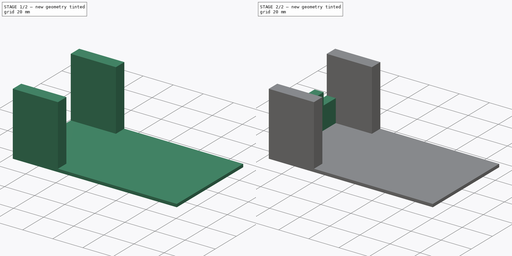
[diagram: build sequence overview — one tinted view per stage of 2, left to right]
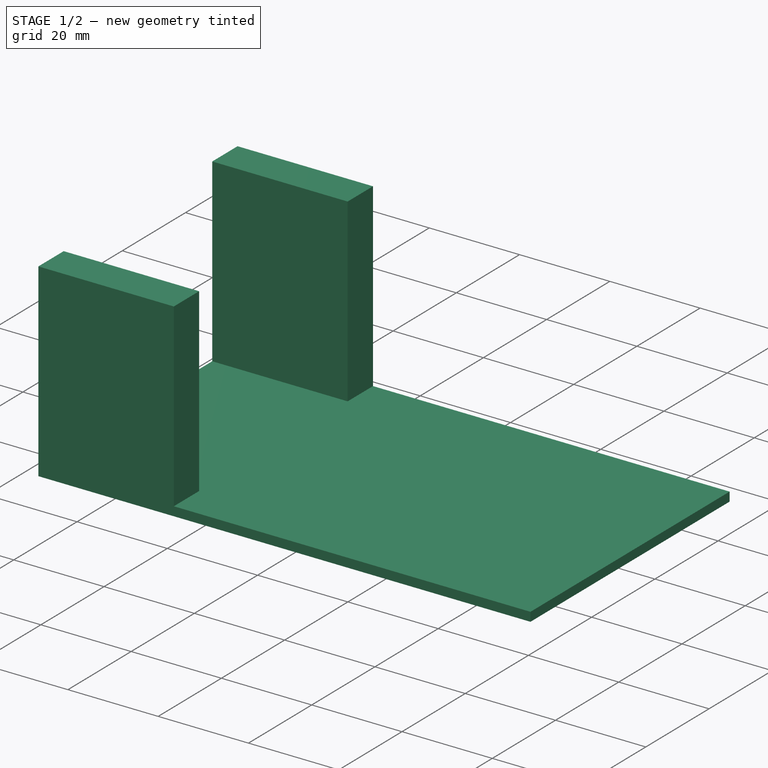
[diagram: stage 1 of 2 — iso view after this stage's code; geometry added in this stage tinted green]
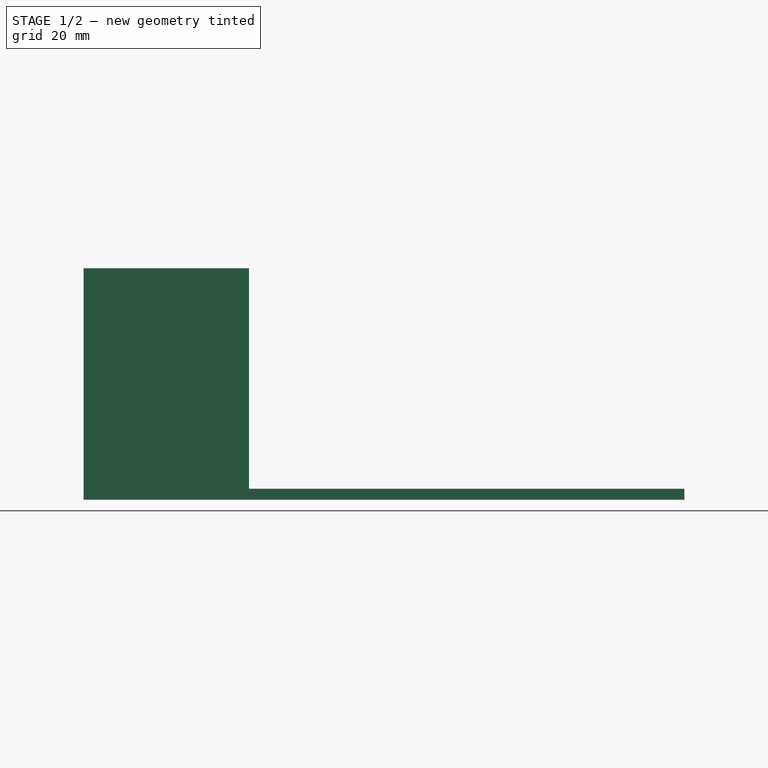
[diagram: stage 1 of 2 — front view after this stage's code; geometry added in this stage tinted green]
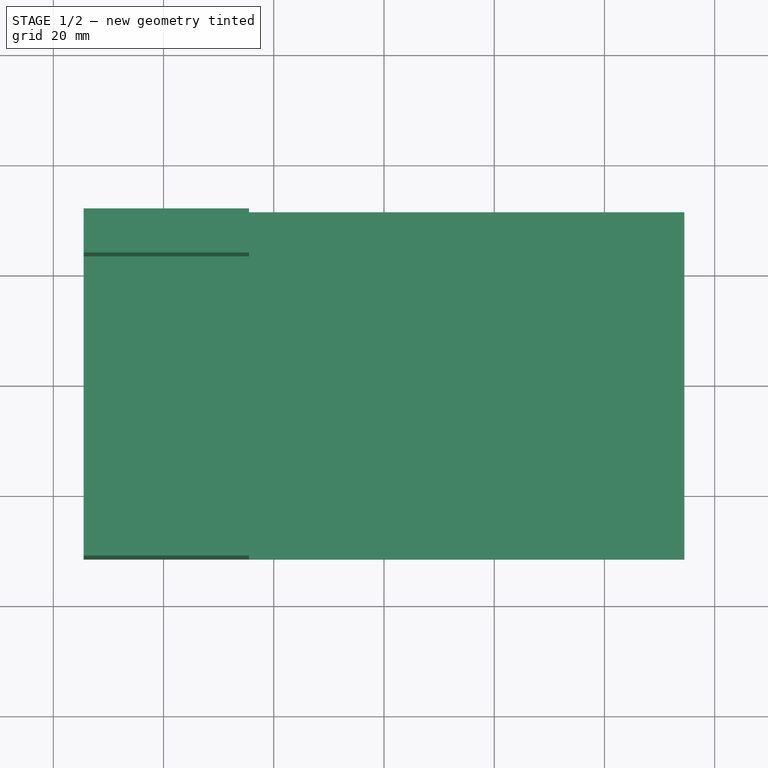
[diagram: stage 1 of 2 — top view after this stage's code; geometry added in this stage tinted green]
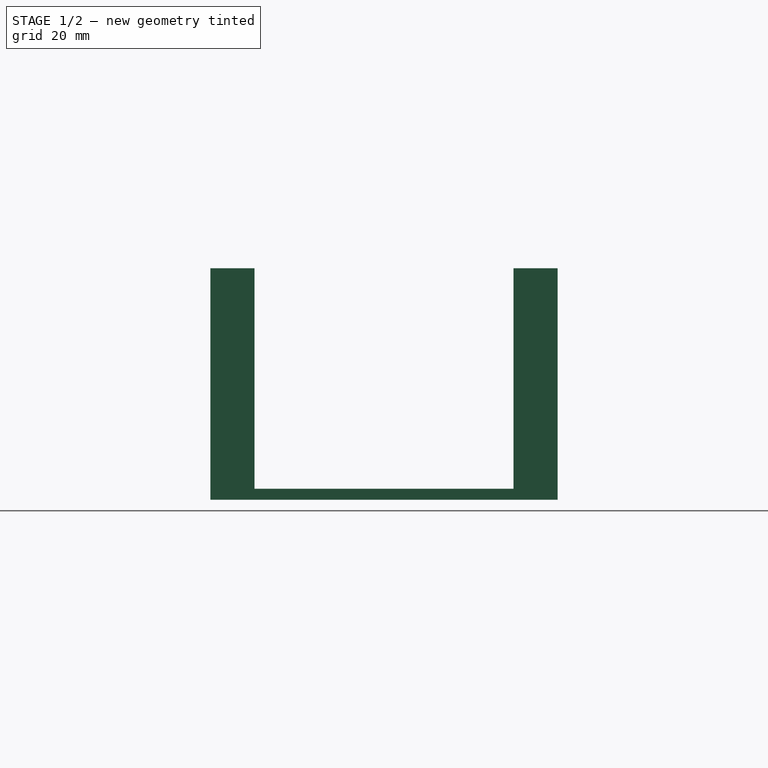
[diagram: stage 1 of 2 — right view after this stage's code; geometry added in this stage tinted green]
FCSTD DOCUMENT  (FreeCAD 0.15R4671 (Git))
Label: Solenoid Tray Test
License: All rights reserved
LicenseURL: http://en.wikipedia.org/wiki/All_rights_reserved
objects: Sketcher::SketchObject×4, PartDesign::Pad×4
note: 12 computed .brp shape members not serialized (recipe doc carries the construction recipe); baked Part::Feature solids carry a one-line shape summary decoded from their .brp

FEATURE [Sketcher::SketchObject] Sketch
  sketch-geometry (4):
    g0: LineSegment StartX=-54.5 StartY=31.5 StartZ=0 EndX=54.5 EndY=31.5 EndZ=0
    g1: LineSegment StartX=54.5 StartY=31.5 StartZ=0 EndX=54.5 EndY=-31.5 EndZ=0
    g2: LineSegment StartX=54.5 StartY=-31.5 StartZ=0 EndX=-54.5 EndY=-31.5 EndZ=0
    g3: LineSegment StartX=-54.5 StartY=-31.5 StartZ=0 EndX=-54.5 EndY=31.5 EndZ=0
  constraints (12):
    c: Coincident(g0,g1)
    c: Coincident(g1,g2)
    c: Coincident(g2,g3)
    c: Coincident(g3,g0)
    c: Horizontal(g0)
    c: Horizontal(g2)
    c: Vertical(g1)
    c: Vertical(g3)
    c: Symmetric(g0,g2,g-1)
    c: Symmetric(g0,g0,g-2)
    c: DistanceY(g3) = 63
    c: DistanceX(g0) = 109
FEATURE [PartDesign::Pad] Pad
  Length = 2
  Length2 = 100
  Sketch = -> Sketch
  Type = 0
FEATURE [Sketcher::SketchObject] Sketch001
  ExternalGeometry = -> [Pad]
  Placement = pos=(0,0,2) rot=(0,0,1;0rad)
  Support = -> Pad [Face6]
  sketch-geometry (8):
    g0: LineSegment StartX=-54.5 StartY=31.5 StartZ=0 EndX=-24.5 EndY=31.5 EndZ=0
    g1: LineSegment StartX=-24.5 StartY=31.5 StartZ=0 EndX=-24.5 EndY=23.5 EndZ=0
    g2: LineSegment StartX=-24.5 StartY=23.5 StartZ=0 EndX=-54.5 EndY=23.5 EndZ=0
    g3: LineSegment StartX=-54.5 StartY=23.5 StartZ=0 EndX=-54.5 EndY=31.5 EndZ=0
    g4: LineSegment StartX=-54.5 StartY=-23.5 StartZ=0 EndX=-24.5 EndY=-23.5 EndZ=0
    g5: LineSegment StartX=-24.5 StartY=-23.5 StartZ=0 EndX=-24.5 EndY=-31.5 EndZ=0
    g6: LineSegment StartX=-24.5 StartY=-31.5 StartZ=0 EndX=-54.5 EndY=-31.5 EndZ=0
    g7: LineSegment StartX=-54.5 StartY=-31.5 StartZ=0 EndX=-54.5 EndY=-23.5 EndZ=0
  constraints (23):
    c: Coincident(g0,g1)
    c: Coincident(g1,g2)
    c: Coincident(g2,g3)
    c: Coincident(g3,g0)
    c: Horizontal(g0)
    c: Horizontal(g2)
    c: Vertical(g1)
    c: Vertical(g3)
    c: Coincident(g4,g5)
    c: Coincident(g5,g6)
    c: Coincident(g6,g7)
    c: Coincident(g7,g4)
    c: Horizontal(g4)
    c: Horizontal(g6)
    c: Vertical(g5)
    c: Vertical(g7)
    c: Equal(g4,g2)
    c: Equal(g1,g5)
    c: Symmetric(g1,g4,g-1)
    c: DistanceY(g1) = -8
    c: DistanceY(g1,g4) = -47
    c: DistanceX(g0) = 30
    c: PointOnObject(g0,g-3)
FEATURE [PartDesign::Pad] Pad001
  Length = 40
  Length2 = 100
  Sketch = -> Sketch001
  Type = 0
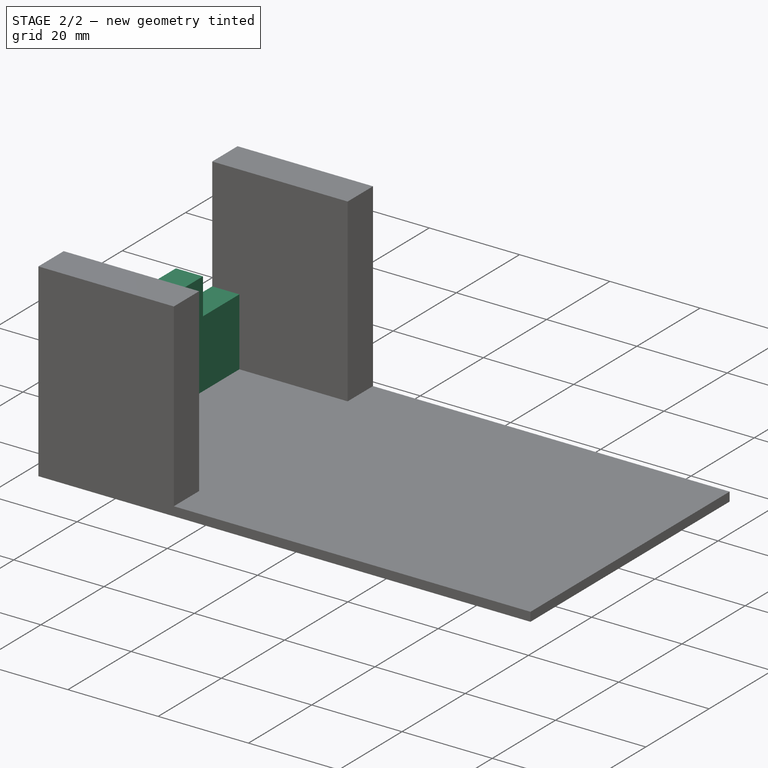
[diagram: stage 2 of 2 — iso view after this stage's code; geometry added in this stage tinted green]
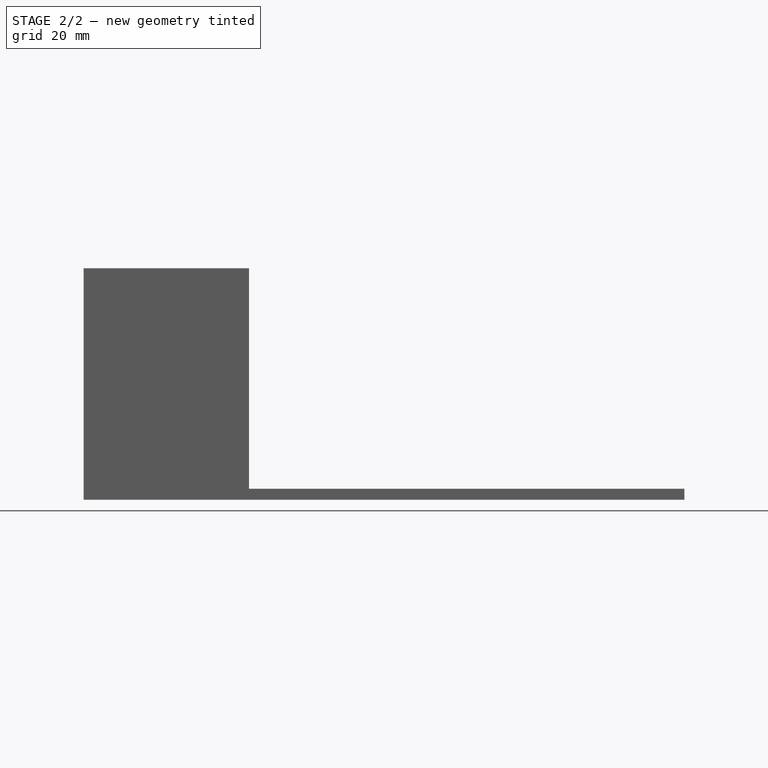
[diagram: stage 2 of 2 — front view after this stage's code; geometry added in this stage tinted green]
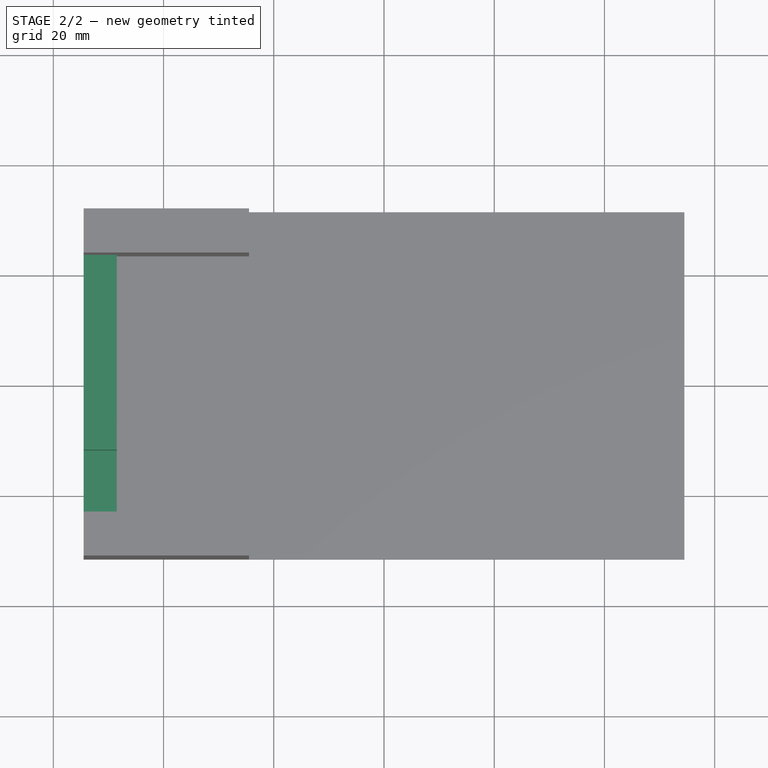
[diagram: stage 2 of 2 — top view after this stage's code; geometry added in this stage tinted green]
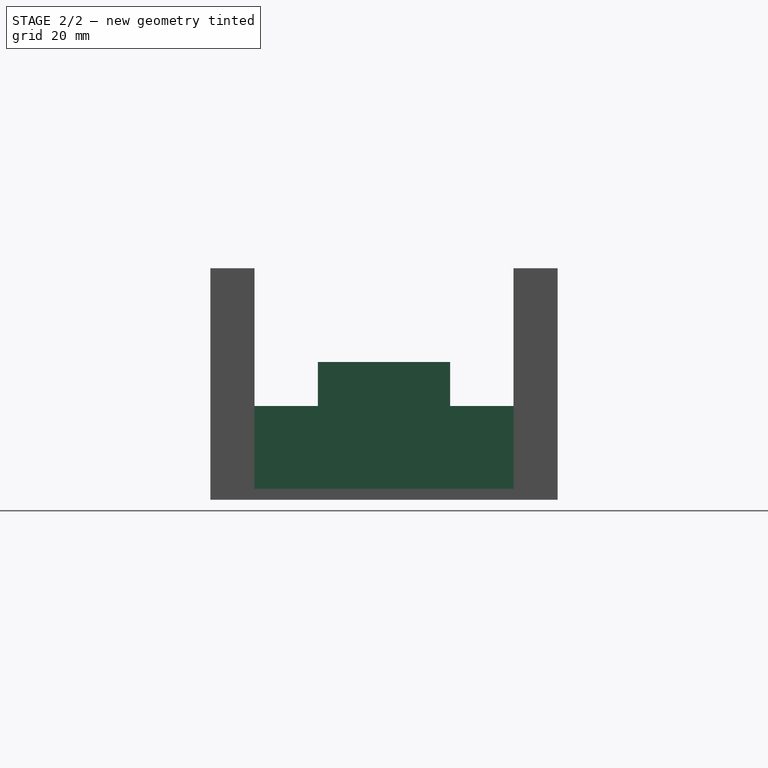
[diagram: stage 2 of 2 — right view after this stage's code; geometry added in this stage tinted green]
FEATURE [Sketcher::SketchObject] Sketch002
  ExternalGeometry = -> [Pad001]
  Placement = pos=(0,0,2) rot=(0,0,1;0rad)
  Support = -> Pad001 [Face7]
  sketch-geometry (4):
    g0: LineSegment StartX=-54.5 StartY=23.5 StartZ=0 EndX=-48.5 EndY=23.5 EndZ=0
    g1: LineSegment StartX=-48.5 StartY=23.5 StartZ=0 EndX=-48.5 EndY=-23.5 EndZ=0
    g2: LineSegment StartX=-48.5 StartY=-23.5 StartZ=0 EndX=-54.5 EndY=-23.5 EndZ=0
    g3: LineSegment StartX=-54.5 StartY=-23.5 StartZ=0 EndX=-54.5 EndY=23.5 EndZ=0
  constraints (11):
    c: Coincident(g0,g1)
    c: Coincident(g1,g2)
    c: Coincident(g2,g3)
    c: Coincident(g3,g0)
    c: Horizontal(g0)
    c: Horizontal(g2)
    c: Vertical(g1)
    c: Vertical(g3)
    c: Coincident(g0,g-4)
    c: PointOnObject(g1,g-5)
    c: DistanceX(g2) = -6
FEATURE [PartDesign::Pad] Pad002
  Length = 15
  Length2 = 100
  Sketch = -> Sketch002
  Type = 0
FEATURE [Sketcher::SketchObject] Sketch003
  ExternalGeometry = -> [Pad002]
  Placement = pos=(0,0,17) rot=(0,0,1;0rad)
  Support = -> Pad002 [Face19]
  sketch-geometry (4):
    g0: LineSegment StartX=-54.5 StartY=12 StartZ=0 EndX=-48.5 EndY=12 EndZ=0
    g1: LineSegment StartX=-48.5 StartY=12 StartZ=0 EndX=-48.5 EndY=-12 EndZ=0
    g2: LineSegment StartX=-48.5 StartY=-12 StartZ=0 EndX=-54.5 EndY=-12 EndZ=0
    g3: LineSegment StartX=-54.5 StartY=-12 StartZ=0 EndX=-54.5 EndY=12 EndZ=0
  constraints (12):
    c: Coincident(g0,g1)
    c: Coincident(g1,g2)
    c: Coincident(g2,g3)
    c: Coincident(g3,g0)
    c: Horizontal(g0)
    c: Horizontal(g2)
    c: Vertical(g1)
    c: Vertical(g3)
    c: PointOnObject(g0,g-3)
    c: PointOnObject(g1,g-5)
    c: Symmetric(g1,g0,g-1)
    c: DistanceY(g3) = 24
FEATURE [PartDesign::Pad] Pad003
  Length = 8
  Length2 = 100
  Sketch = -> Sketch003
  Type = 0
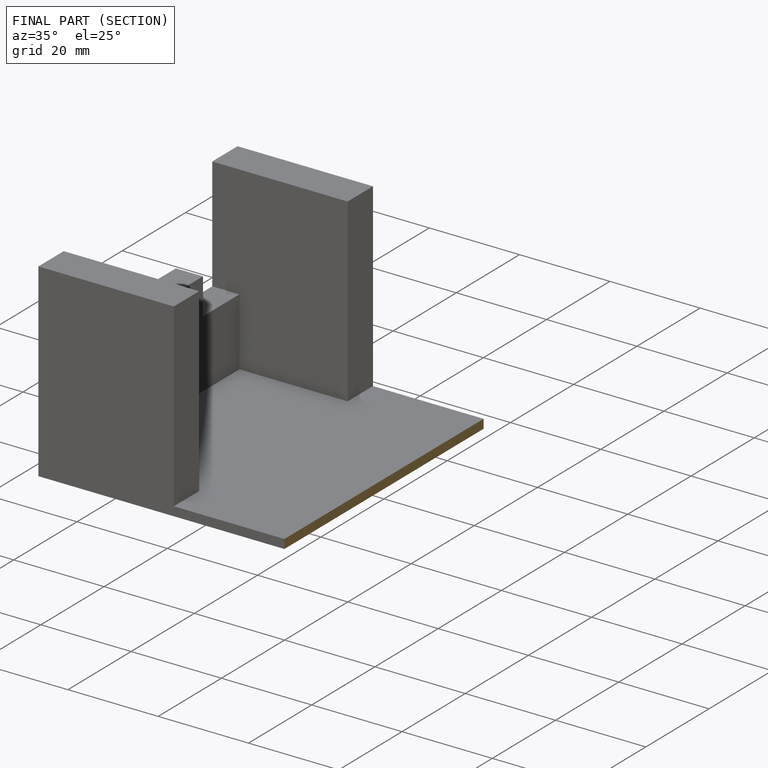
[diagram: finished part — half-section view (interior)]
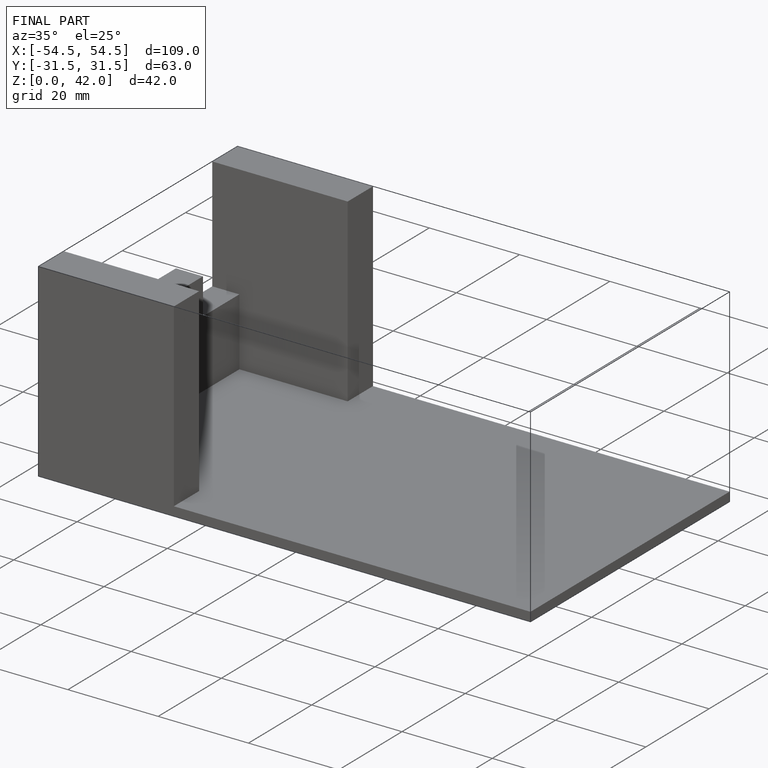
[diagram: finished part — iso view with bounding-box wireframe]
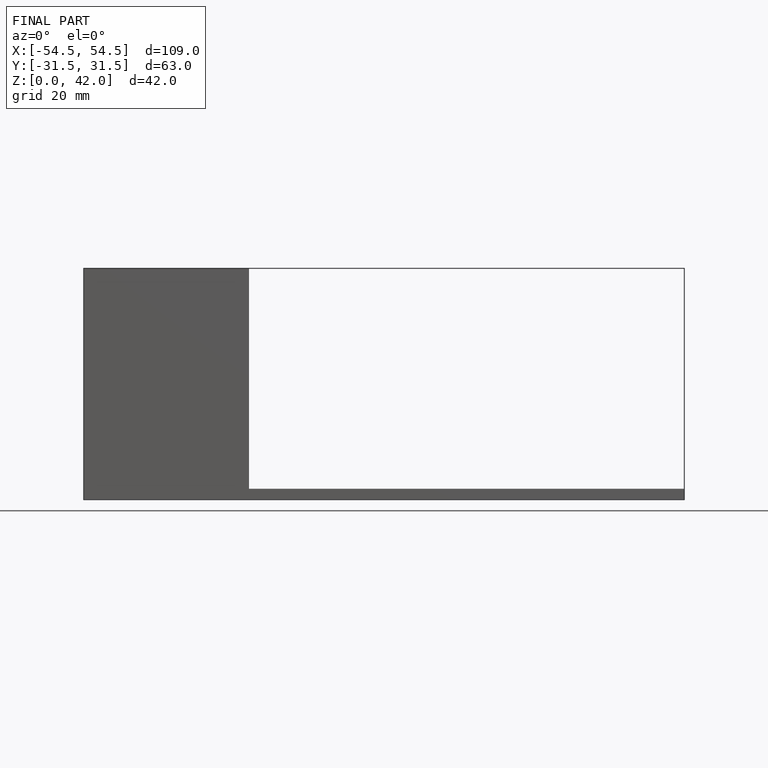
[diagram: finished part — front view with bounding-box wireframe]
